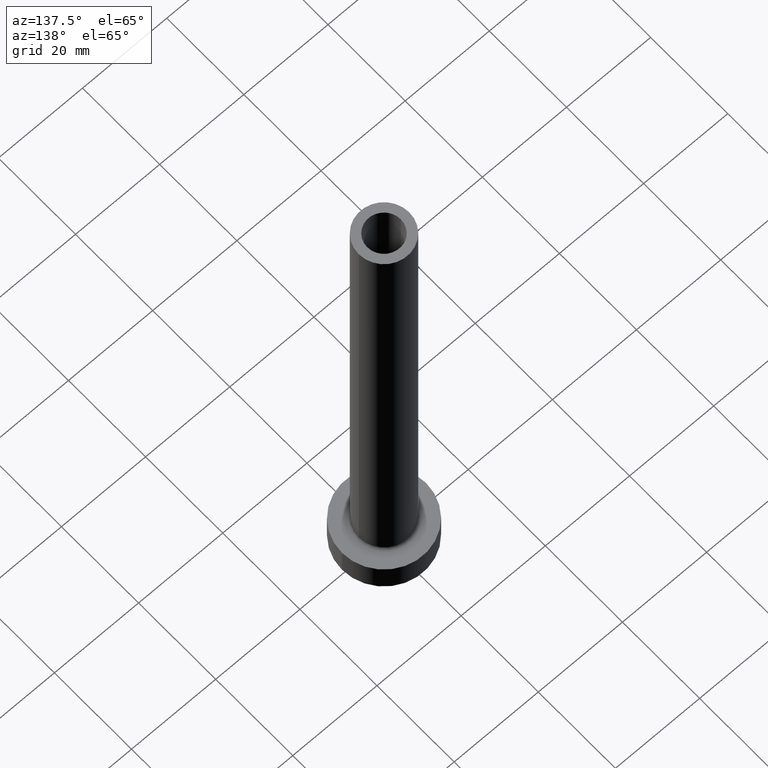
[diagram: clean part render]
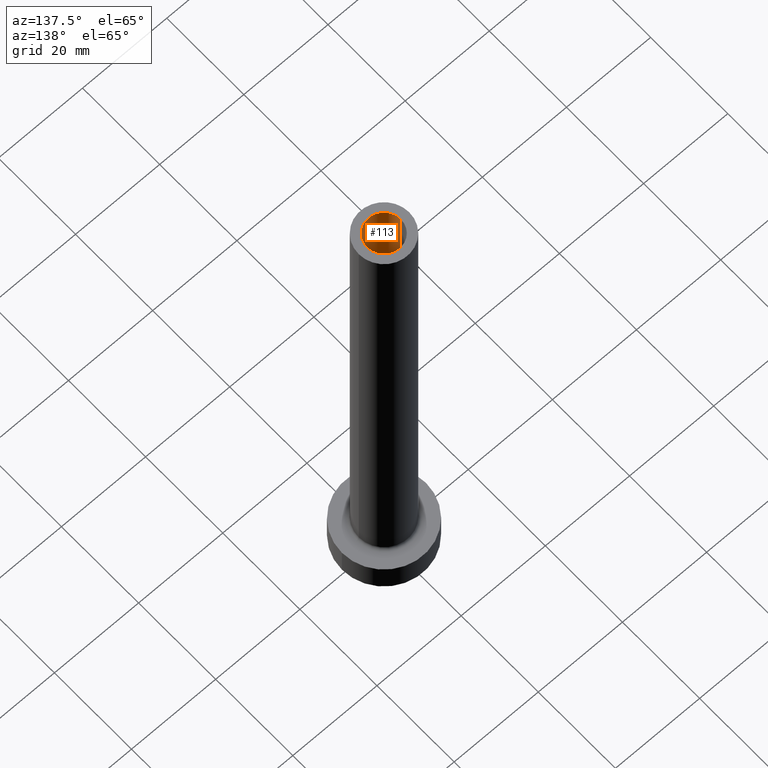
[diagram: same view with one face highlighted and labeled with its STEP entity id]
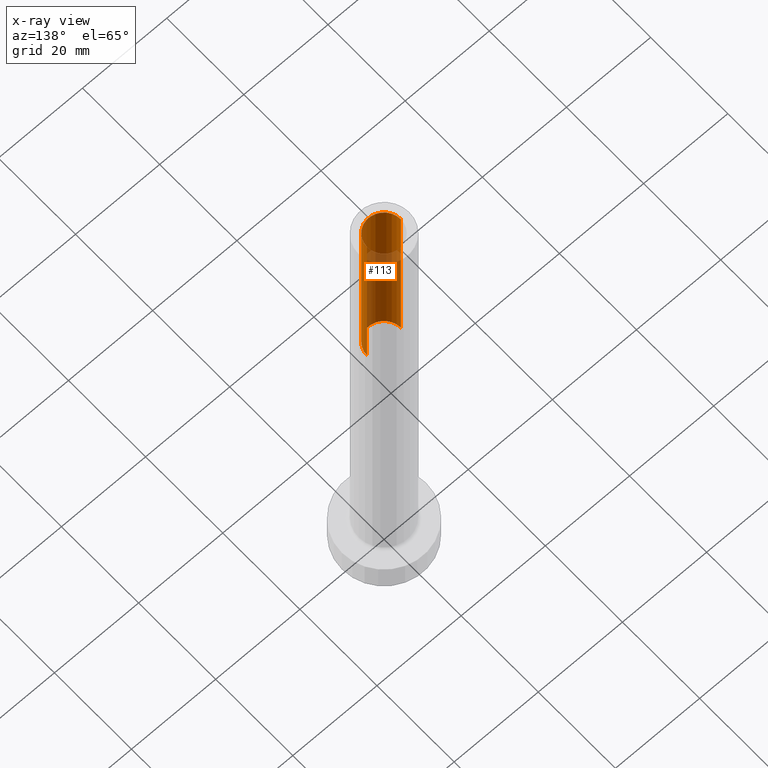
[diagram: x-ray of the same camera — body ghosted, the highlighted face saturated]
A machine part, auxiliary view. The second image highlights one B-rep face of the part: STEP entity #113.
The next image is the same camera in x-ray: the body ghosted, the highlighted face saturated — about 54% of this face is hidden behind the body in this view.
In plain terms, the highlighted cylindrical surface (edge-blend (fillet) strip) has radius 4 mm, axis along (0, 0, -1).
Its self-contained STEP definition (entity closure, byte-faithful):
#2 = EDGE_CURVE ( 'NONE', #231, #159, #436, .T. ) ;
#3 = FACE_OUTER_BOUND ( 'NONE', #362, .T. ) ;
#31 = DIRECTION ( 'NONE',  ( 0.000000000000000000, 0.000000000000000000, -1.000000000000000000 ) ) ;
#45 = CARTESIAN_POINT ( 'NONE',  ( -4.000000000000000000, 0.000000000000000000, 80.00000000000000000 ) ) ;
#48 = VECTOR ( 'NONE', #188, 1000.000000000000000 ) ;
#51 = CARTESIAN_POINT ( 'NONE',  ( -4.000000000000000000, 0.000000000000000000, 125.0000000000000000 ) ) ;
#56 = DIRECTION ( 'NONE',  ( 1.000000000000000000, 0.000000000000000000, 0.000000000000000000 ) ) ;
#57 = CARTESIAN_POINT ( 'NONE',  ( 4.000000000000000000, 4.898587196589411843E-16, 125.0000000000000000 ) ) ;
#66 = DIRECTION ( 'NONE',  ( 0.000000000000000000, 0.000000000000000000, 1.000000000000000000 ) ) ;
#69 = EDGE_CURVE ( 'NONE', #231, #315, #378, .T. ) ;
#79 = EDGE_CURVE ( 'NONE', #315, #161, #99, .T. ) ;
#84 = ORIENTED_EDGE ( 'NONE', *, *, #69, .F. ) ;
#90 = DIRECTION ( 'NONE',  ( 0.000000000000000000, 0.000000000000000000, 1.000000000000000000 ) ) ;
#99 = CIRCLE ( 'NONE', #137, 4.000000000000000000 ) ;
#113 = ADVANCED_FACE ( 'NONE', ( #3 ), #295, .F. ) ;
#120 = CARTESIAN_POINT ( 'NONE',  ( 0.000000000000000000, 0.000000000000000000, 125.0000000000000000 ) ) ;
#136 = DIRECTION ( 'NONE',  ( -1.000000000000000000, 0.000000000000000000, 0.000000000000000000 ) ) ;
#137 = AXIS2_PLACEMENT_3D ( 'NONE', #211, #66, #338 ) ;
#159 = VERTEX_POINT ( 'NONE', #458 ) ;
#161 = VERTEX_POINT ( 'NONE', #422 ) ;
#162 = ORIENTED_EDGE ( 'NONE', *, *, #2, .T. ) ;
#172 = CARTESIAN_POINT ( 'NONE',  ( -4.000000000000000000, 0.000000000000000000, 125.0000000000000000 ) ) ;
#175 = ORIENTED_EDGE ( 'NONE', *, *, #206, .T. ) ;
#188 = DIRECTION ( 'NONE',  ( 0.000000000000000000, 0.000000000000000000, -1.000000000000000000 ) ) ;
#204 = DIRECTION ( 'NONE',  ( 0.000000000000000000, 0.000000000000000000, -1.000000000000000000 ) ) ;
#206 = EDGE_CURVE ( 'NONE', #159, #161, #230, .T. ) ;
#211 = CARTESIAN_POINT ( 'NONE',  ( 0.000000000000000000, 0.000000000000000000, 80.00000000000000000 ) ) ;
#230 = LINE ( 'NONE', #57, #423 ) ;
#231 = VERTEX_POINT ( 'NONE', #172 ) ;
#295 = CYLINDRICAL_SURFACE ( 'NONE', #418, 4.000000000000000000 ) ;
#315 = VERTEX_POINT ( 'NONE', #45 ) ;
#329 = CARTESIAN_POINT ( 'NONE',  ( 0.000000000000000000, 0.000000000000000000, 125.0000000000000000 ) ) ;
#338 = DIRECTION ( 'NONE',  ( 1.000000000000000000, 0.000000000000000000, 0.000000000000000000 ) ) ;
#359 = ORIENTED_EDGE ( 'NONE', *, *, #79, .F. ) ;
#362 = EDGE_LOOP ( 'NONE', ( #162, #175, #359, #84 ) ) ;
#378 = LINE ( 'NONE', #51, #48 ) ;
#418 = AXIS2_PLACEMENT_3D ( 'NONE', #329, #31, #136 ) ;
#420 = AXIS2_PLACEMENT_3D ( 'NONE', #120, #90, #56 ) ;
#422 = CARTESIAN_POINT ( 'NONE',  ( 4.000000000000000000, 4.898587196589411843E-16, 80.00000000000000000 ) ) ;
#423 = VECTOR ( 'NONE', #204, 1000.000000000000000 ) ;
#436 = CIRCLE ( 'NONE', #420, 4.000000000000000000 ) ;
#458 = CARTESIAN_POINT ( 'NONE',  ( 4.000000000000000000, 4.898587196589411843E-16, 125.0000000000000000 ) ) ;